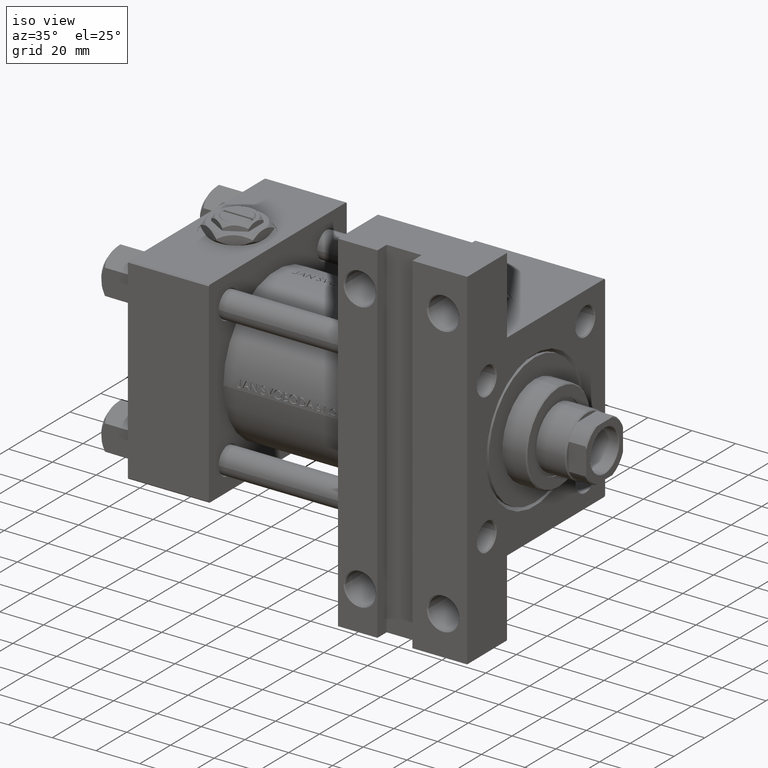
[diagram: clean part render]
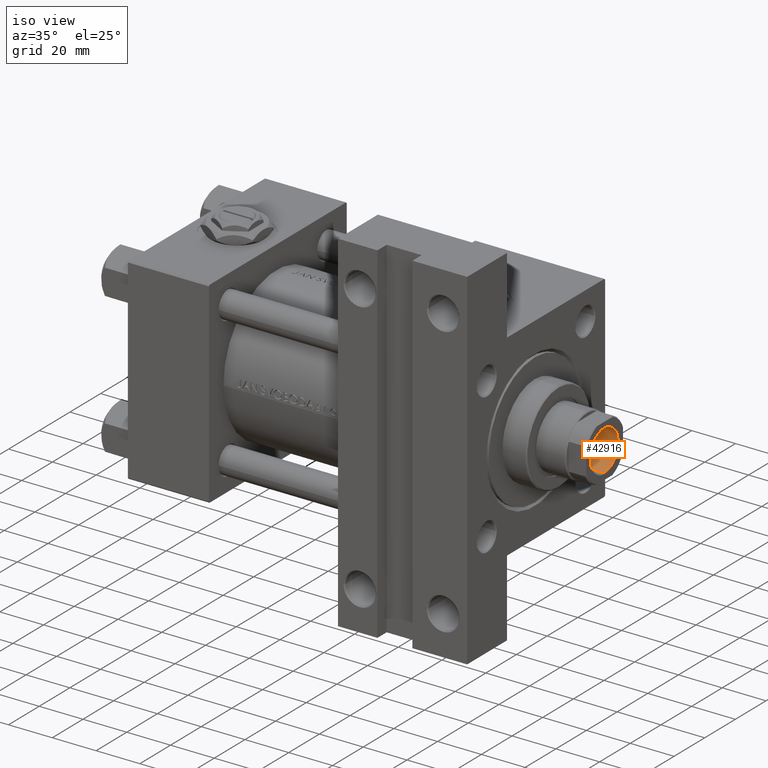
[diagram: same view with one face highlighted and labeled with its STEP entity id]
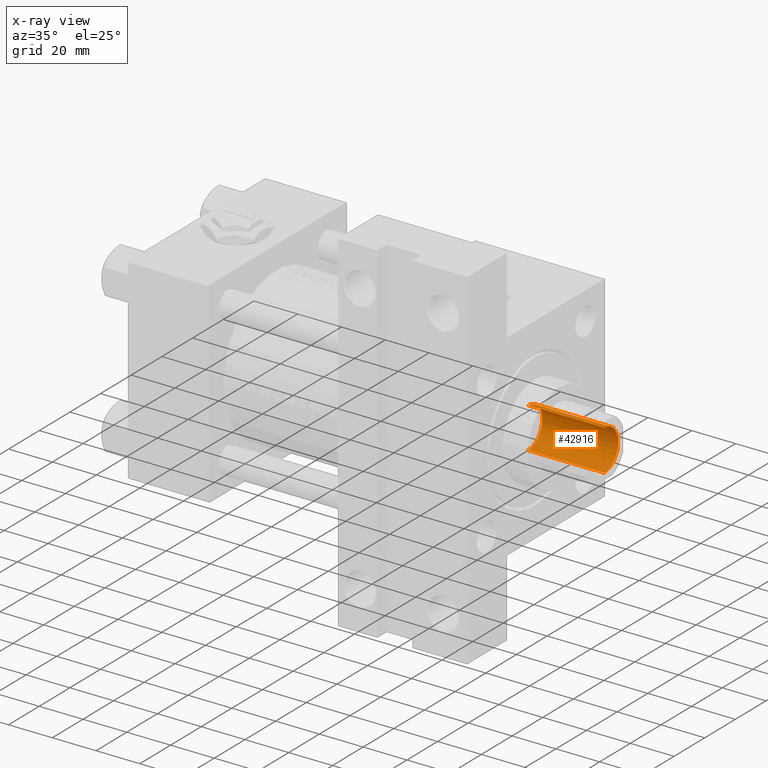
[diagram: x-ray of the same camera — body ghosted, the highlighted face saturated]
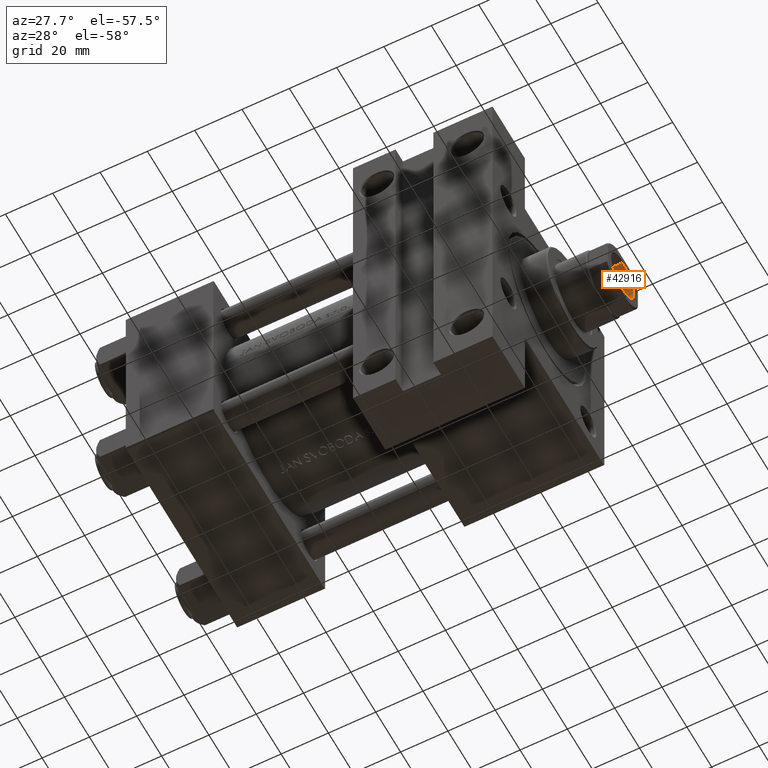
[diagram: same view with one face highlighted and labeled with its STEP entity id]
A machine part, iso view. The second image highlights one B-rep face of the part: STEP entity #42916.
The next image is the same camera in x-ray: the body ghosted, the highlighted face saturated — about 0% of this face is hidden behind the body in this view.
A second angle (auxiliary view) of the same face is appended — the face is thin or edge-on in the first view.
In plain terms, the highlighted cylindrical surface (edge-blend (fillet) strip) has radius 9.25 mm, axis along (1, 0, 0).
Its self-contained STEP definition (entity closure, byte-faithful):
#449 = CARTESIAN_POINT ( 'NONE',  ( 0.000000000000000000, 0.000000000000000000, 150.0000000000000000 ) ) ;
#2340 = DIRECTION ( 'NONE',  ( 0.000000000000000000, 0.000000000000000000, 1.000000000000000000 ) ) ;
#4858 = DIRECTION ( 'NONE',  ( -0.000000000000000000, -0.000000000000000000, 1.000000000000000000 ) ) ;
#5187 = CARTESIAN_POINT ( 'NONE',  ( 9.249999999999992895, 0.000000000000000000, 114.9999999999999858 ) ) ;
#7198 = DIRECTION ( 'NONE',  ( -0.000000000000000000, -0.000000000000000000, 1.000000000000000000 ) ) ;
#7311 = VERTEX_POINT ( 'NONE', #43011 ) ;
#7891 = CARTESIAN_POINT ( 'NONE',  ( 9.249999999999994671, 0.000000000000000000, 149.6999999999999886 ) ) ;
#8372 = CARTESIAN_POINT ( 'NONE',  ( -9.249999999999994671, 1.132798289211300909E-15, 150.0000000000000000 ) ) ;
#10025 = ORIENTED_EDGE ( 'NONE', *, *, #44217, .F. ) ;
#10291 = EDGE_CURVE ( 'NONE', #7311, #34751, #42814, .T. ) ;
#11456 = VECTOR ( 'NONE', #7198, 1000.000000000000000 ) ;
#15789 = DIRECTION ( 'NONE',  ( -0.000000000000000000, -0.000000000000000000, 1.000000000000000000 ) ) ;
#17664 = DIRECTION ( 'NONE',  ( 1.000000000000000000, 0.000000000000000000, 0.000000000000000000 ) ) ;
#19275 = DIRECTION ( 'NONE',  ( 1.000000000000000000, 0.000000000000000000, 0.000000000000000000 ) ) ;
#23310 = FACE_OUTER_BOUND ( 'NONE', #42486, .T. ) ;
#24228 = AXIS2_PLACEMENT_3D ( 'NONE', #449, #15789, #39375 ) ;
#24925 = VERTEX_POINT ( 'NONE', #5187 ) ;
#25160 = VECTOR ( 'NONE', #4858, 1000.000000000000000 ) ;
#27027 = LINE ( 'NONE', #30296, #11456 ) ;
#30296 = CARTESIAN_POINT ( 'NONE',  ( 9.249999999999994671, 0.000000000000000000, 150.0000000000000000 ) ) ;
#31073 = CARTESIAN_POINT ( 'NONE',  ( 0.000000000000000000, 0.000000000000000000, 114.9999999999999858 ) ) ;
#31470 = EDGE_CURVE ( 'NONE', #7311, #24925, #44850, .T. ) ;
#34751 = VERTEX_POINT ( 'NONE', #42183 ) ;
#35370 = EDGE_CURVE ( 'NONE', #34751, #45046, #44035, .T. ) ;
#36027 = AXIS2_PLACEMENT_3D ( 'NONE', #36756, #2340, #17664 ) ;
#36756 = CARTESIAN_POINT ( 'NONE',  ( 0.000000000000000000, 0.000000000000000000, 149.6999999999999886 ) ) ;
#38630 = CYLINDRICAL_SURFACE ( 'NONE', #24228, 9.249999999999994671 ) ;
#39375 = DIRECTION ( 'NONE',  ( 1.000000000000000000, 0.000000000000000000, 0.000000000000000000 ) ) ;
#41600 = AXIS2_PLACEMENT_3D ( 'NONE', #31073, #46178, #19275 ) ;
#41636 = ORIENTED_EDGE ( 'NONE', *, *, #35370, .T. ) ;
#41809 = ORIENTED_EDGE ( 'NONE', *, *, #31470, .F. ) ;
#42183 = CARTESIAN_POINT ( 'NONE',  ( -9.249999999999994671, 1.132798289211300909E-15, 149.6999999999999886 ) ) ;
#42486 = EDGE_LOOP ( 'NONE', ( #41809, #44290, #41636, #10025 ) ) ;
#42814 = LINE ( 'NONE', #8372, #25160 ) ;
#42916 = ADVANCED_FACE ( 'NONE', ( #23310 ), #38630, .F. ) ;
#43011 = CARTESIAN_POINT ( 'NONE',  ( -9.249999999999992895, 1.132798289211300712E-15, 114.9999999999999858 ) ) ;
#44035 = CIRCLE ( 'NONE', #36027, 9.249999999999994671 ) ;
#44217 = EDGE_CURVE ( 'NONE', #24925, #45046, #27027, .T. ) ;
#44290 = ORIENTED_EDGE ( 'NONE', *, *, #10291, .T. ) ;
#44850 = CIRCLE ( 'NONE', #41600, 9.249999999999992895 ) ;
#45046 = VERTEX_POINT ( 'NONE', #7891 ) ;
#46178 = DIRECTION ( 'NONE',  ( -0.000000000000000000, -0.000000000000000000, 1.000000000000000000 ) ) ;